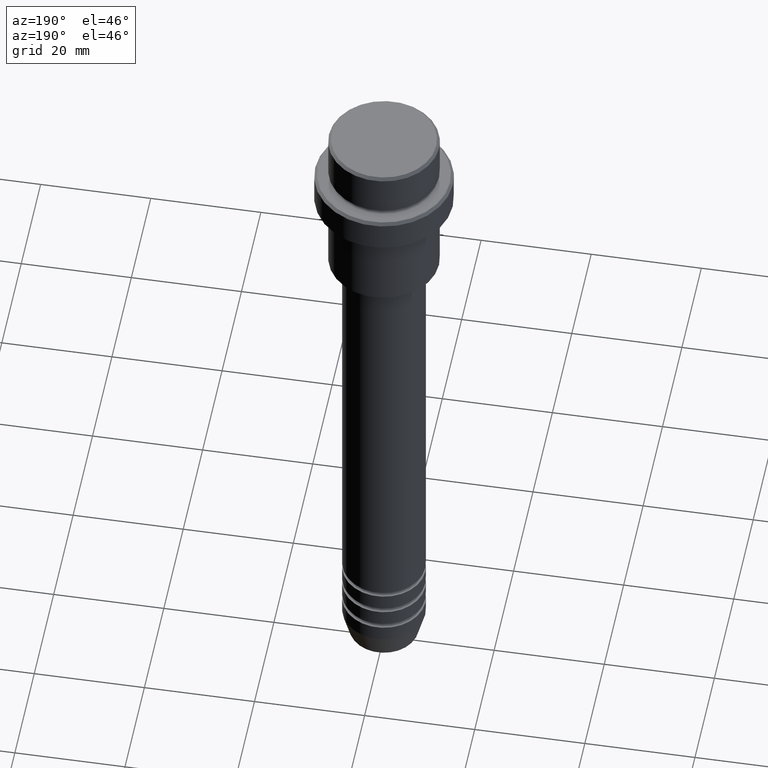
[diagram: clean part render]
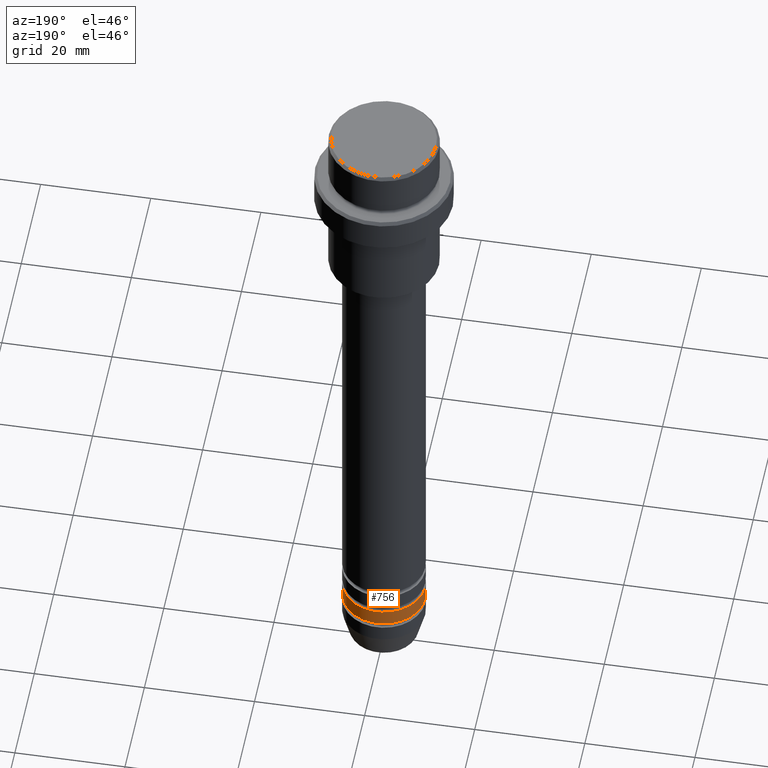
[diagram: same view with one face highlighted and labeled with its STEP entity id]
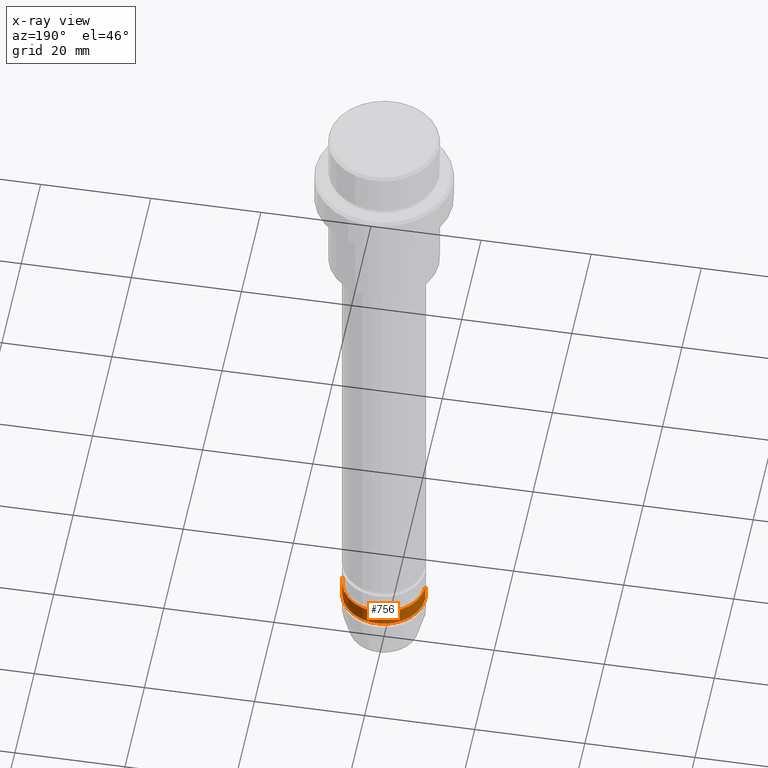
[diagram: x-ray of the same camera — body ghosted, the highlighted face saturated]
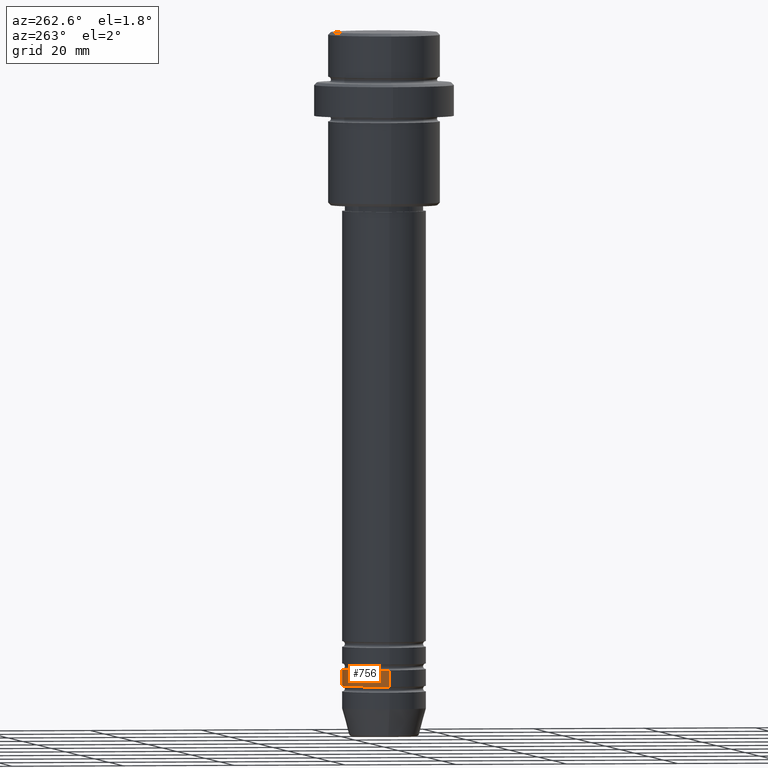
[diagram: same view with one face highlighted and labeled with its STEP entity id]
A machine part, auxiliary view. The second image highlights one B-rep face of the part: STEP entity #756.
The next image is the same camera in x-ray: the body ghosted, the highlighted face saturated — about 0% of this face is hidden behind the body in this view.
A second angle (auxiliary view) of the same face is appended — the face is thin or edge-on in the first view.
In plain terms, the highlighted cylindrical surface (partial cylindrical patch) has radius 7.5 mm, axis along (-0, -0, 1).
Its self-contained STEP definition (entity closure, byte-faithful):
#4 = ORIENTED_EDGE ( 'NONE', *, *, #1196, .T. ) ;
#10 = VERTEX_POINT ( 'NONE', #373 ) ;
#25 = DIRECTION ( 'NONE',  ( 1.000000000000000000, 0.000000000000000000, 0.000000000000000000 ) ) ;
#46 = CARTESIAN_POINT ( 'NONE',  ( -7.500000000000000000, 9.184850993605147944E-16, 0.000000000000000000 ) ) ;
#81 = ORIENTED_EDGE ( 'NONE', *, *, #949, .F. ) ;
#83 = LINE ( 'NONE', #1198, #1390 ) ;
#236 = EDGE_CURVE ( 'NONE', #10, #700, #522, .T. ) ;
#307 = DIRECTION ( 'NONE',  ( -0.000000000000000000, -0.000000000000000000, 1.000000000000000000 ) ) ;
#313 = AXIS2_PLACEMENT_3D ( 'NONE', #642, #963, #425 ) ;
#324 = ORIENTED_EDGE ( 'NONE', *, *, #236, .T. ) ;
#342 = CARTESIAN_POINT ( 'NONE',  ( -7.500000000000000000, 9.184850993605147944E-16, -116.9999999999998579 ) ) ;
#365 = VERTEX_POINT ( 'NONE', #846 ) ;
#373 = CARTESIAN_POINT ( 'NONE',  ( 7.500000000000000000, 0.000000000000000000, -116.9999999999998579 ) ) ;
#425 = DIRECTION ( 'NONE',  ( 1.000000000000000000, 0.000000000000000000, 0.000000000000000000 ) ) ;
#434 = DIRECTION ( 'NONE',  ( 1.000000000000000000, 0.000000000000000000, 0.000000000000000000 ) ) ;
#522 = CIRCLE ( 'NONE', #313, 7.500000000000000000 ) ;
#642 = CARTESIAN_POINT ( 'NONE',  ( 0.000000000000000000, 0.000000000000000000, -116.9999999999998579 ) ) ;
#650 = DIRECTION ( 'NONE',  ( -0.000000000000000000, -0.000000000000000000, 1.000000000000000000 ) ) ;
#700 = VERTEX_POINT ( 'NONE', #342 ) ;
#713 = CARTESIAN_POINT ( 'NONE',  ( 0.000000000000000000, 0.000000000000000000, 0.000000000000000000 ) ) ;
#731 = FACE_OUTER_BOUND ( 'NONE', #889, .T. ) ;
#734 = EDGE_CURVE ( 'NONE', #365, #1244, #1347, .T. ) ;
#738 = AXIS2_PLACEMENT_3D ( 'NONE', #713, #1080, #434 ) ;
#756 = ADVANCED_FACE ( 'NONE', ( #731 ), #836, .T. ) ;
#836 = CYLINDRICAL_SURFACE ( 'NONE', #738, 7.500000000000000000 ) ;
#846 = CARTESIAN_POINT ( 'NONE',  ( 7.500000000000000000, 0.000000000000000000, -113.9999999999998863 ) ) ;
#889 = EDGE_LOOP ( 'NONE', ( #324, #4, #1372, #81 ) ) ;
#949 = EDGE_CURVE ( 'NONE', #10, #365, #83, .T. ) ;
#963 = DIRECTION ( 'NONE',  ( -0.000000000000000000, -0.000000000000000000, 1.000000000000000000 ) ) ;
#1022 = AXIS2_PLACEMENT_3D ( 'NONE', #1384, #307, #25 ) ;
#1080 = DIRECTION ( 'NONE',  ( -0.000000000000000000, -0.000000000000000000, 1.000000000000000000 ) ) ;
#1196 = EDGE_CURVE ( 'NONE', #700, #1244, #1209, .T. ) ;
#1198 = CARTESIAN_POINT ( 'NONE',  ( 7.500000000000000000, 0.000000000000000000, 0.000000000000000000 ) ) ;
#1209 = LINE ( 'NONE', #46, #1259 ) ;
#1244 = VERTEX_POINT ( 'NONE', #1261 ) ;
#1251 = DIRECTION ( 'NONE',  ( -0.000000000000000000, -0.000000000000000000, 1.000000000000000000 ) ) ;
#1259 = VECTOR ( 'NONE', #1251, 1000.000000000000000 ) ;
#1261 = CARTESIAN_POINT ( 'NONE',  ( -7.500000000000000000, 9.184850993605147944E-16, -113.9999999999998863 ) ) ;
#1347 = CIRCLE ( 'NONE', #1022, 7.500000000000000000 ) ;
#1372 = ORIENTED_EDGE ( 'NONE', *, *, #734, .F. ) ;
#1384 = CARTESIAN_POINT ( 'NONE',  ( 0.000000000000000000, 0.000000000000000000, -113.9999999999998863 ) ) ;
#1390 = VECTOR ( 'NONE', #650, 1000.000000000000000 ) ;